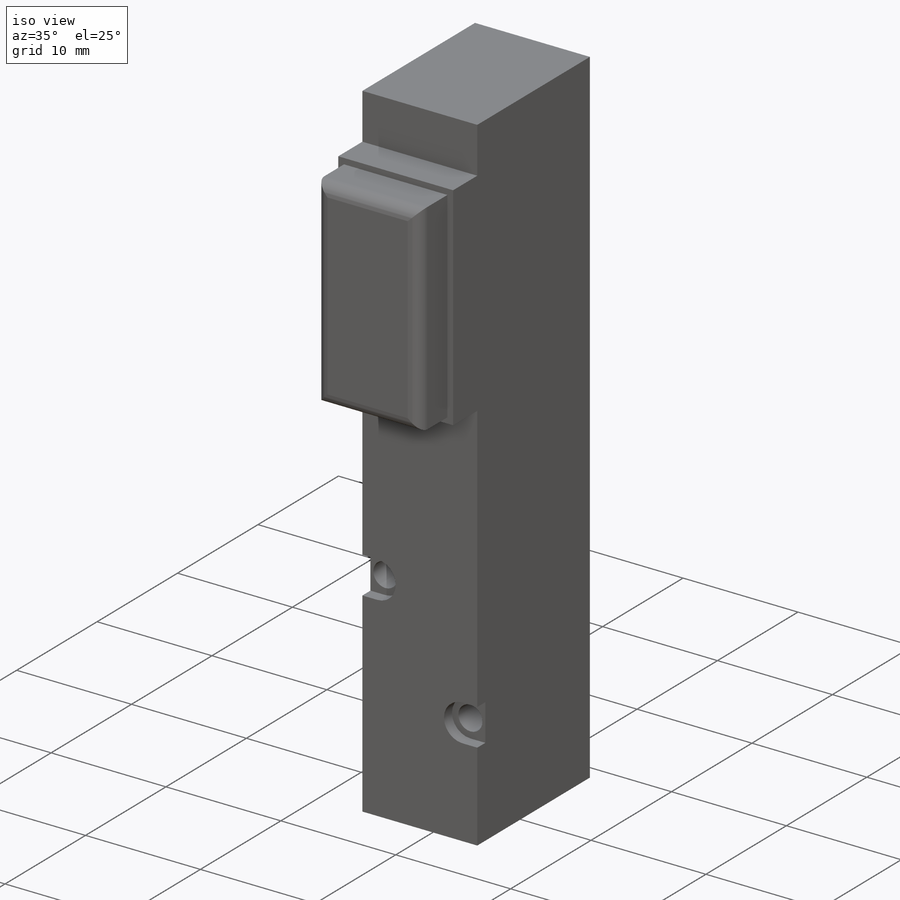
[diagram: iso view]
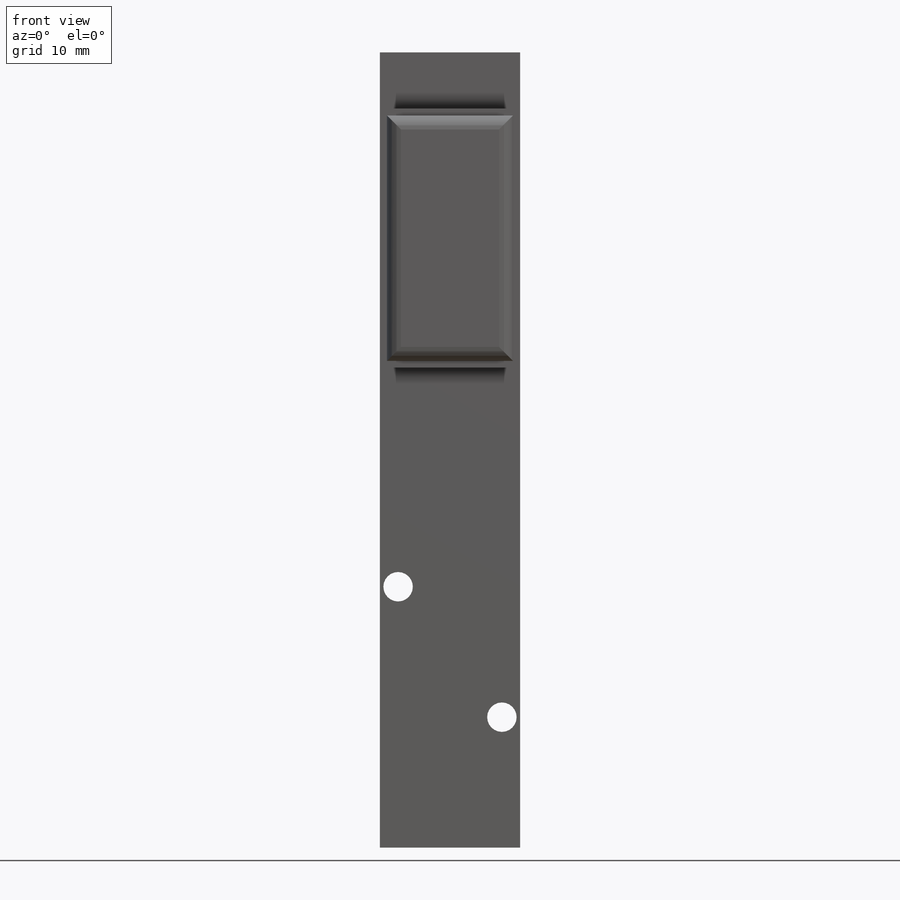
[diagram: front view]
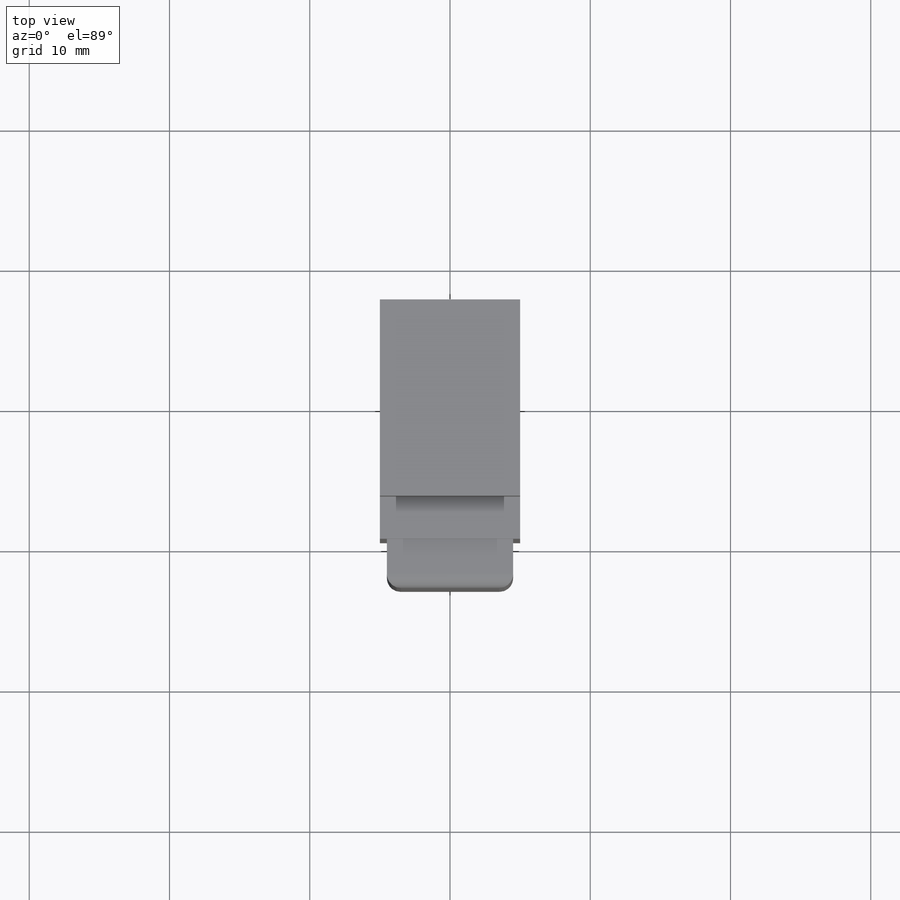
[diagram: top view]
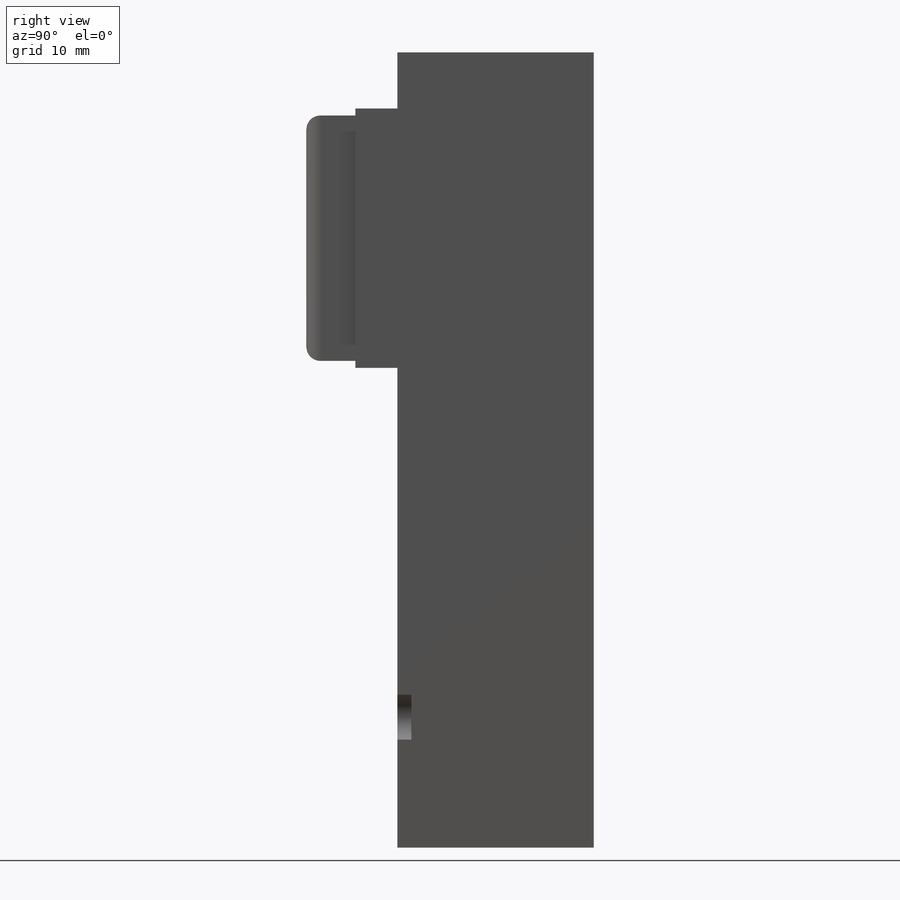
[diagram: right view]
SOLIDWORKS PART (.sldprt)
format: sldprt  version: not decoded by parser v0  size: 542,208 bytes
history: native  units: mm
features: sketch x7, thread x5, extrude x3, hole x2, material x1, cut_extrude x1, fillet x1 (+13 scaffold rows collapsed)
feature tree (33):
  scaffold x13  (default folders/planes/origin — collapsed)
  material  "6061-T6"
  sketch  "Sketch1"  dims[D1=14.0mm D2=10.0mm D3=5.0mm D4=7.0mm]
  extrude  "Extrude1"  Depth=56.7mm
  sketch  "Sketch2"  dims[D1=18.498mm D2=4.0mm]
  extrude  "Extrude2"  Depth=3mm
  hole  "M3x0.5 Tapped Hole1"  Diameter=2.5mm Depth=7.5mm
  sketch  "3DSketch2"  dims[c1.D1=5.0mm c1.D2=5.0mm c1.D3=5.0mm c1.D4=6.4mm c1.D5=6.4mm c1.D6=36.2mm c1.D7=14.1mm c1.D8=14.1mm c2.D7=~9.41758mm c2.D8=~9.41758mm c3.D7=10.9mm c3.D8=~9.239069mm c3.D9=~9.239069mm c4.D8=~9.239069mm c4.D9=~9.239069mm c5.D8=3.0mm c5.D9=3.0mm c5.D10=~1.730951mm c5.D11=~1.730951mm c6.D10=17.3mm]
  sketch  "Sketch4"  dims[hole-wizard template sketch: 49 standard entries collapsed; hole parameters kept: c15.Drill Angle=160.0deg]
  thread  "Hole Thread1"  Diameter=6mm  [1 undecoded]
  thread  "Hole Thread2"  Diameter=6mm  [1 undecoded]
  thread  "Hole Thread3"  Diameter=6mm  [1 undecoded]
  thread  "Hole Thread4"  Diameter=0mm  [1 undecoded]
  thread  "Hole Thread5"  Diameter=0mm  [1 undecoded]
  sketch  "Sketch5"  dims[D5=2.1mm D1=8.7mm D2=18.6mm D3=9.3mm D4=8.7mm D6=7.4mm]
  cut_extrude  "Manifold Screws Counterbore"  [1 undecoded]
  sketch  "Sketch6"  dims[D5=3.2mm D1=18.6mm D2=9.3mm D3=7.4mm D4=8.7mm]
  hole  "Mounting Hole"  Diameter=1mm
  sketch  "Sketch7"  dims[D1=0.5mm]
  extrude  "Extrude3"  Depth=3.5mm
  fillet  "Fillet1"  Radius=1mm
decode coverage: 18 of 19 modeling features carry decoded parameters
note: ~ marks probable driven/reference dimensions
note: 6 parameter values undecoded
note: suppression state not decoded; provenance and decode notes live in map.json
